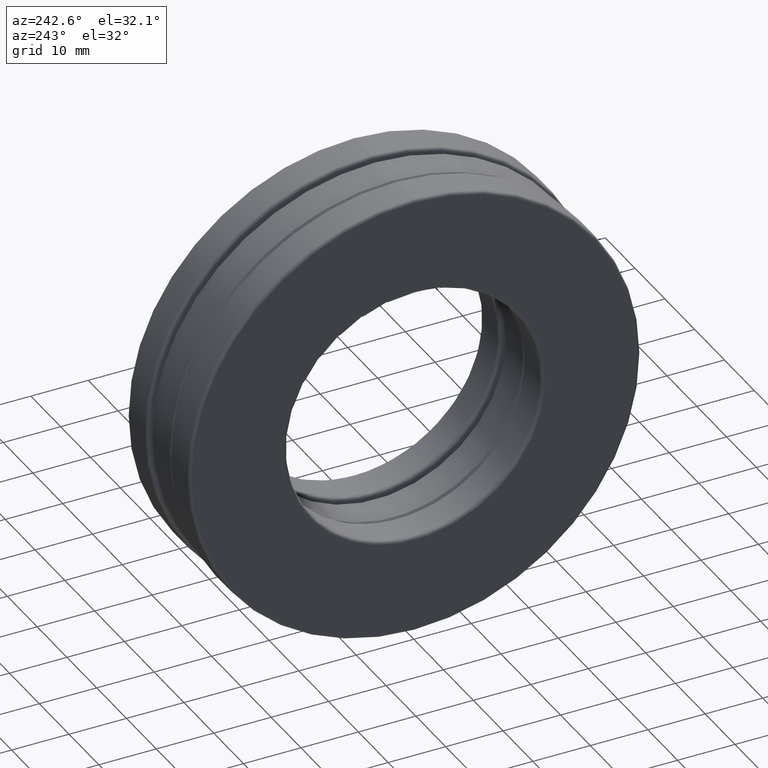
[diagram: clean part render]
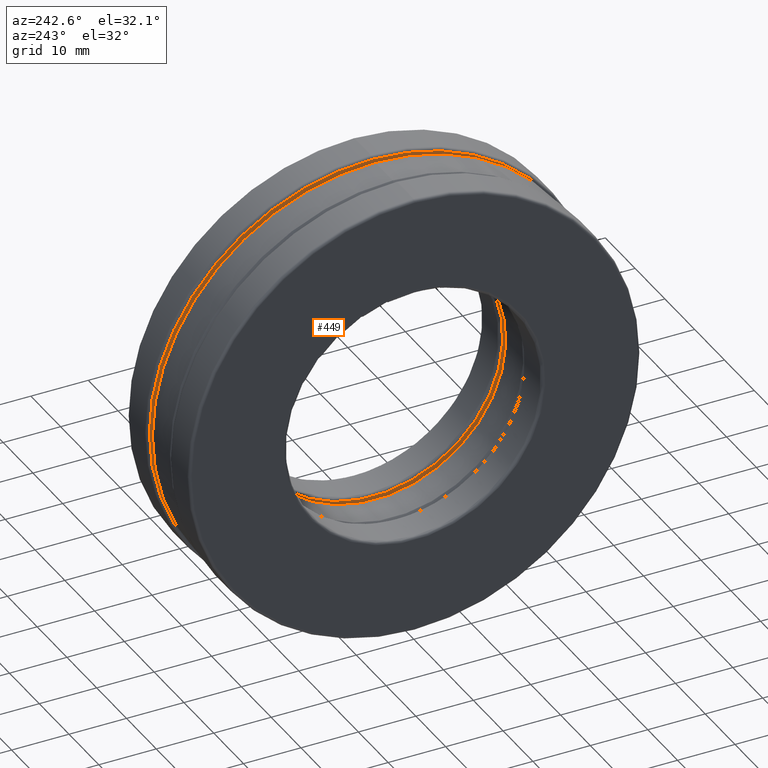
[diagram: same view with one face highlighted and labeled with its STEP entity id]
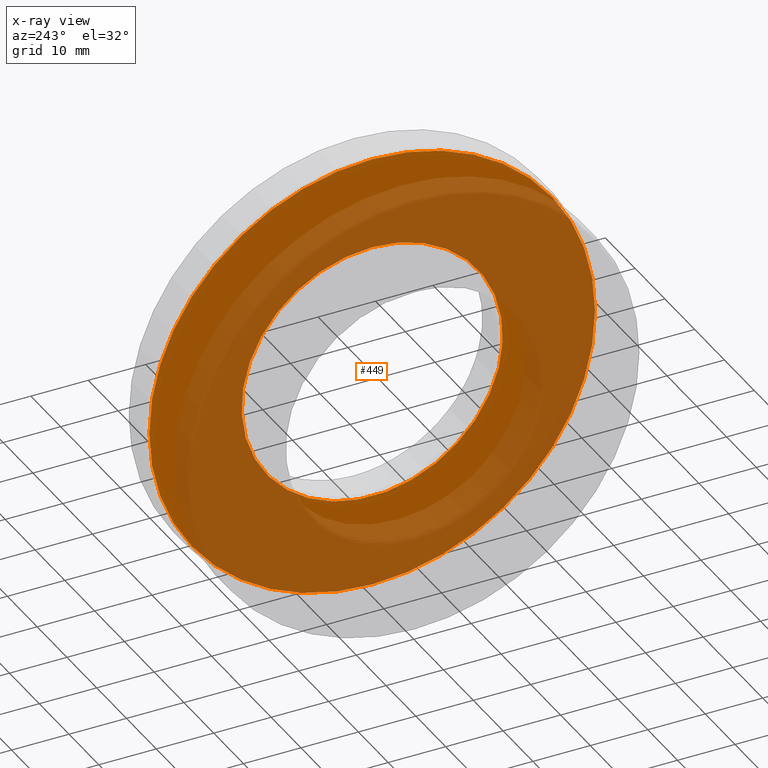
[diagram: x-ray of the same camera — body ghosted, the highlighted face saturated]
A machine part, auxiliary view. The second image highlights one B-rep face of the part: STEP entity #449.
The next image is the same camera in x-ray: the body ghosted, the highlighted face saturated — about 71% of this face is hidden behind the body in this view.
In plain terms, the highlighted planar face has unit normal (1, 0, 0).
Its self-contained STEP definition (entity closure, byte-faithful):
#111 = EDGE_LOOP ( 'NONE', ( #608 ) ) ;
#217 = VERTEX_POINT ( 'NONE', #568 ) ;
#365 = CIRCLE ( 'NONE', #555, 1.526875000000000600 ) ;
#400 = EDGE_LOOP ( 'NONE', ( #798 ) ) ;
#449 = ADVANCED_FACE ( 'NONE', ( #1136, #959 ), #1384, .F. ) ;
#480 = DIRECTION ( 'NONE',  ( 1.000000000000000000, 0.0000000000000000000, 0.0000000000000000000 ) ) ;
#481 = EDGE_CURVE ( 'NONE', #217, #217, #365, .T. ) ;
#555 = AXIS2_PLACEMENT_3D ( 'NONE', #618, #1294, #1057 ) ;
#568 = CARTESIAN_POINT ( 'NONE',  ( 0.1559999999999999400, 0.0000000000000000000, 1.526875000000000600 ) ) ;
#608 = ORIENTED_EDGE ( 'NONE', *, *, #1227, .F. ) ;
#618 = CARTESIAN_POINT ( 'NONE',  ( 0.1559999999999999400, 0.0000000000000000000, 0.0000000000000000000 ) ) ;
#798 = ORIENTED_EDGE ( 'NONE', *, *, #481, .T. ) ;
#865 = VERTEX_POINT ( 'NONE', #1343 ) ;
#870 = AXIS2_PLACEMENT_3D ( 'NONE', #873, #1448, #1440 ) ;
#873 = CARTESIAN_POINT ( 'NONE',  ( 0.1560000000000000300, 0.0000000000000000000, 0.0000000000000000000 ) ) ;
#959 = FACE_OUTER_BOUND ( 'NONE', #400, .T. ) ;
#989 = CIRCLE ( 'NONE', #870, 0.8950000000000000200 ) ;
#1057 = DIRECTION ( 'NONE',  ( 0.0000000000000000000, 0.0000000000000000000, 1.000000000000000000 ) ) ;
#1136 = FACE_BOUND ( 'NONE', #111, .T. ) ;
#1158 = DIRECTION ( 'NONE',  ( 0.0000000000000000000, 0.0000000000000000000, -1.000000000000000000 ) ) ;
#1227 = EDGE_CURVE ( 'NONE', #865, #865, #989, .T. ) ;
#1283 = CARTESIAN_POINT ( 'NONE',  ( 0.1560000000000000000, 1.686125764635509200E-017, 0.0000000000000000000 ) ) ;
#1294 = DIRECTION ( 'NONE',  ( -1.000000000000000000, -0.0000000000000000000, -0.0000000000000000000 ) ) ;
#1343 = CARTESIAN_POINT ( 'NONE',  ( 0.1560000000000000300, 0.0000000000000000000, 0.8950000000000000200 ) ) ;
#1384 = PLANE ( 'NONE',  #1406 ) ;
#1406 = AXIS2_PLACEMENT_3D ( 'NONE', #1283, #480, #1158 ) ;
#1440 = DIRECTION ( 'NONE',  ( 0.0000000000000000000, 0.0000000000000000000, 1.000000000000000000 ) ) ;
#1448 = DIRECTION ( 'NONE',  ( -1.000000000000000000, -0.0000000000000000000, -0.0000000000000000000 ) ) ;